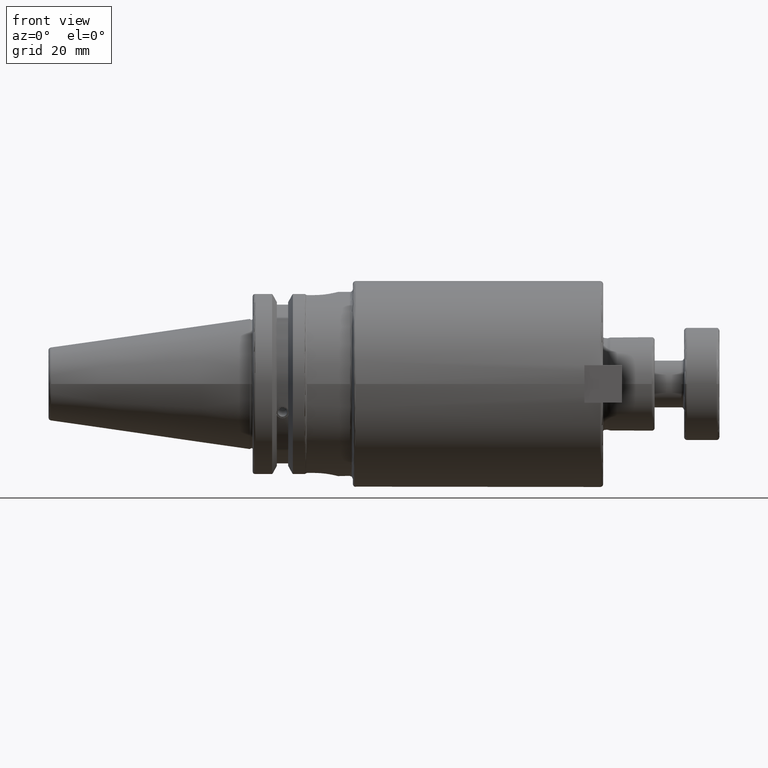
[diagram: clean part render]
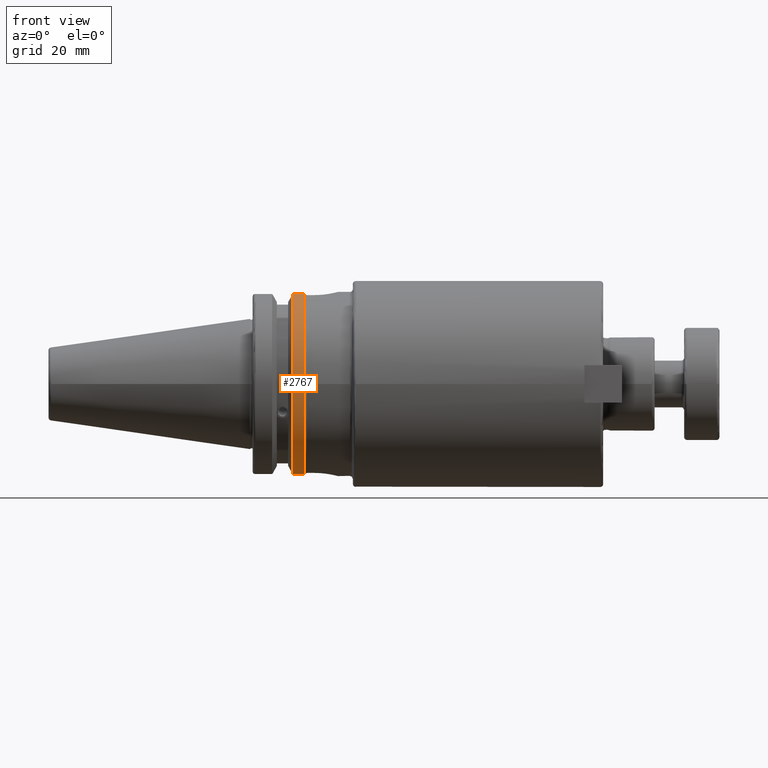
[diagram: same view with one face highlighted and labeled with its STEP entity id]
A machine part, front view. The second image highlights one B-rep face of the part: STEP entity #2767.
In plain terms, the highlighted cylindrical surface (partial cylindrical patch) has radius 31.75 mm, axis along (1, 0, 0).
Its self-contained STEP definition (entity closure, byte-faithful):
#328=FACE_OUTER_BOUND('',#505,.T.);
#505=EDGE_LOOP('',(#2316,#2317,#2318,#2319));
#648=CIRCLE('',#3066,31.75);
#667=CIRCLE('',#3113,31.75);
#823=LINE('',#4975,#996);
#846=LINE('',#5137,#1019);
#996=VECTOR('',#3718,10.);
#1019=VECTOR('',#3799,10.);
#1248=VERTEX_POINT('',#4754);
#1249=VERTEX_POINT('',#4758);
#1287=VERTEX_POINT('',#4954);
#1288=VERTEX_POINT('',#4963);
#1566=EDGE_CURVE('',#1249,#1248,#648,.T.);
#1624=EDGE_CURVE('',#1287,#1288,#667,.T.);
#1627=EDGE_CURVE('',#1249,#1287,#823,.T.);
#1678=EDGE_CURVE('',#1288,#1248,#846,.T.);
#2316=ORIENTED_EDGE('',*,*,#1624,.F.);
#2317=ORIENTED_EDGE('',*,*,#1627,.F.);
#2318=ORIENTED_EDGE('',*,*,#1566,.T.);
#2319=ORIENTED_EDGE('',*,*,#1678,.F.);
#2661=CYLINDRICAL_SURFACE('',#3144,31.75);
#2767=ADVANCED_FACE('',(#328),#2661,.T.);
#3066=AXIS2_PLACEMENT_3D('',#4759,#3601,#3602);
#3113=AXIS2_PLACEMENT_3D('',#4964,#3713,#3714);
#3144=AXIS2_PLACEMENT_3D('',#5138,#3800,#3801);
#3601=DIRECTION('center_axis',(1.,0.,0.));
#3602=DIRECTION('ref_axis',(0.,0.,-1.));
#3713=DIRECTION('center_axis',(1.,0.,0.));
#3714=DIRECTION('ref_axis',(0.,-1.,1.60812264967664E-16));
#3718=DIRECTION('',(1.,0.,0.));
#3799=DIRECTION('',(-1.,0.,0.));
#3800=DIRECTION('center_axis',(1.,0.,0.));
#3801=DIRECTION('ref_axis',(0.,-1.,1.22464679914735E-16));
#4754=CARTESIAN_POINT('',(14.6602667690756,-8.67204822802686,-30.5427254764662));
#4758=CARTESIAN_POINT('',(14.6602667690756,-8.67204822802685,30.5427254764662));
#4759=CARTESIAN_POINT('Origin',(14.6602667690756,0.,0.));
#4954=CARTESIAN_POINT('',(18.55,-8.67204822802685,30.5427254764662));
#4963=CARTESIAN_POINT('',(18.55,-8.67204822802686,-30.5427254764662));
#4964=CARTESIAN_POINT('Origin',(18.55,0.,0.));
#4975=CARTESIAN_POINT('',(16.8551333845378,-8.67204822802685,30.5427254764662));
#5137=CARTESIAN_POINT('',(16.8551333845378,-8.67204822802686,-30.5427254764662));
#5138=CARTESIAN_POINT('Origin',(16.8551333845378,0.,0.));